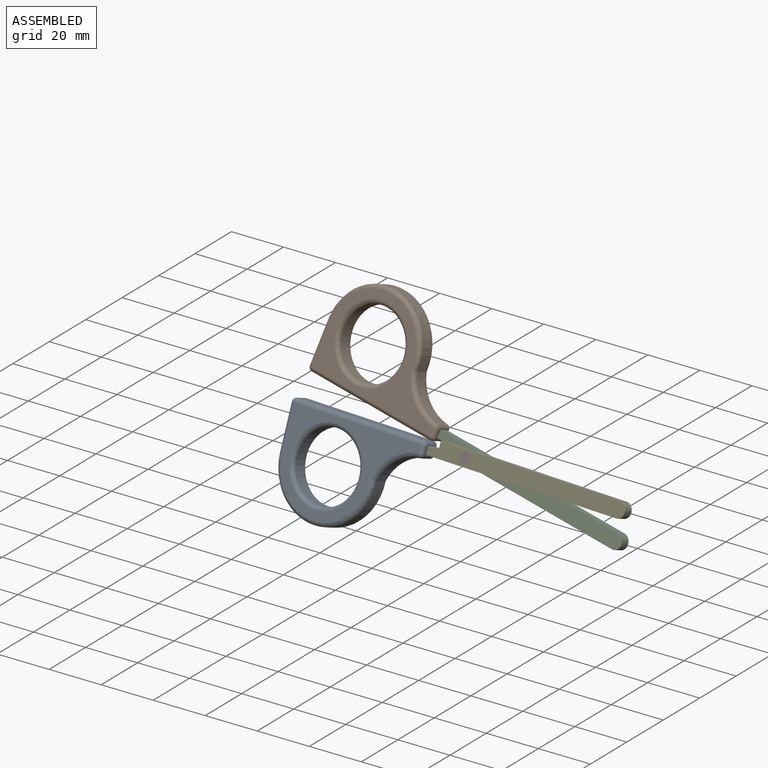
[diagram: assembled view]
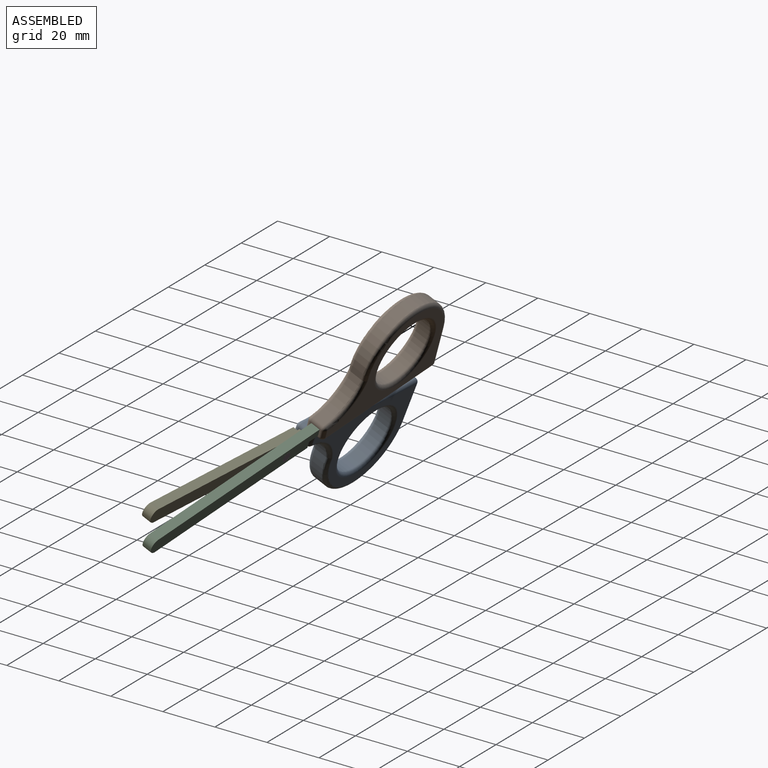
[diagram: assembled view, second angle]
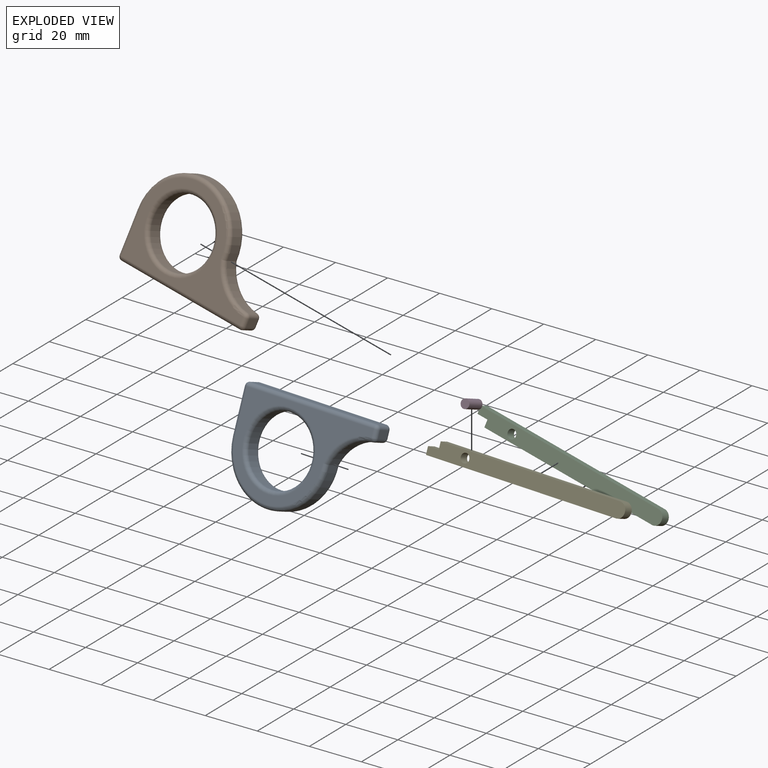
[diagram: exploded view]
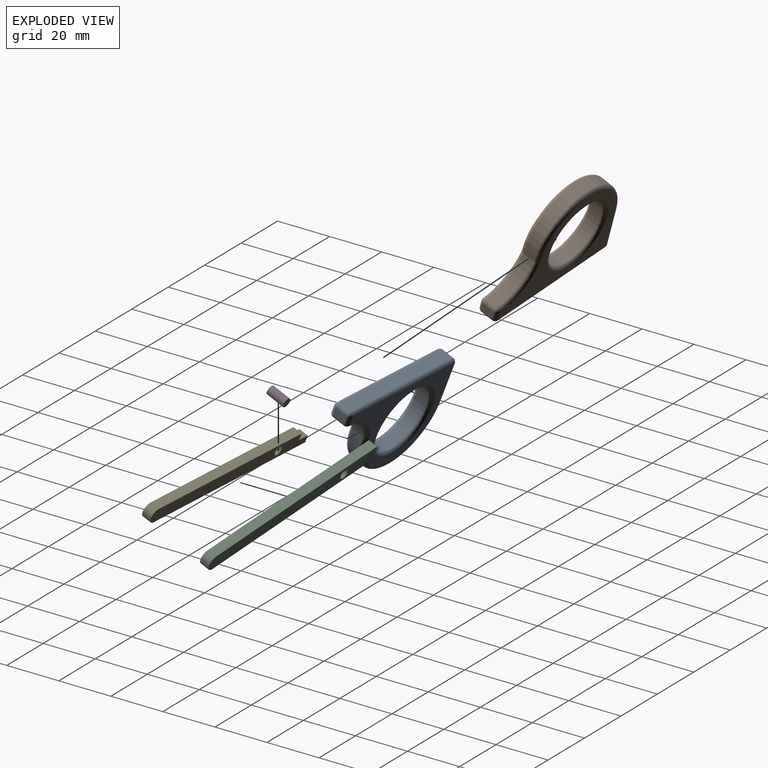
[diagram: exploded view, second angle]
ASSEMBLY  parts=5 mates=4
PART A: 29 faces, bbox 55.5x7.6x38.4 mm
  f0: cylinder r=16.51mm len=14.47mm, axis (0,1,0), area 89mm2, adj f1,f9,f17,f23
  f1: cylinder r=19.05mm len=38.1mm, axis (0,1,0), area 276.3mm2, adj f0,f2,f10,f25
  f2: plane 16.26x4.57mm, normal (-1,0,0), area 74.3mm2, adj f1,f13,f21,f26
  f3: plane 50.93x4.57mm, normal (0,0,-1), area 232.8mm2, adj f14,f15,f21,f22
  f4: cylinder r=12.7mm len=25.4mm, axis (0,1,0), area 364.8mm2, adj f27,f28
  f5: plane 4.57x2.87mm, normal (1,0,0), area 13.1mm2, adj f8,f15,f16,f17
  f6: plane 50.93x33.78mm, normal (0,-1,0), area 519.1mm2, adj f8,f9,f10,f13,f14,f28
  f7: plane 50.93x33.78mm, normal (0,1,0), area 519.1mm2, adj f16,f22,f23,f25,f26,f27
  f8: cylinder r=1.52mm len=2.87mm, axis (0,0,-1), area 6.9mm2, adj f5,f6,f11,f12
  f9: torus R=18.03mm, axis (0,-1,0), area 48.4mm2, adj f0,f6,f10,f12
  f10: torus R=17.53mm, axis (0,-1,0), area 140.7mm2, adj f1,f6,f9,f13
  f11: sphere r=1.52mm, area 3.6mm2, adj f8,f14,f15
  f12: sphere r=1.52mm, area 3.5mm2, adj f8,f9,f17
  f13: cylinder r=1.52mm len=16.26mm, axis (0,0,1), area 38.9mm2, adj f2,f6,f10,f18
  f14: cylinder r=1.52mm len=50.93mm, axis (-1,0,0), area 121.9mm2, adj f3,f6,f11,f18
  f15: cylinder r=1.52mm len=4.57mm, axis (0,1,0), area 10.9mm2, adj f3,f5,f11,f19
  f16: cylinder r=1.52mm len=2.87mm, axis (0,0,1), area 6.9mm2, adj f5,f7,f19,f20
  f17: cylinder r=1.52mm len=4.57mm, axis (0,1,0), area 10.4mm2, adj f0,f5,f12,f20
  f18: sphere r=1.52mm, area 3.6mm2, adj f13,f14,f21
  f19: sphere r=1.52mm, area 3.6mm2, adj f15,f16,f22
  f20: sphere r=1.52mm, area 3.5mm2, adj f16,f17,f23
  f21: cylinder r=1.52mm len=4.57mm, axis (0,-1,0), area 10.9mm2, adj f2,f3,f18,f24
  f22: cylinder r=1.52mm len=50.93mm, axis (1,0,0), area 121.9mm2, adj f3,f7,f19,f24
  f23: torus R=18.03mm, axis (0,-1,0), area 48.4mm2, adj f0,f7,f20,f25
  f24: sphere r=1.52mm, area 3.6mm2, adj f21,f22,f26
  f25: torus R=17.53mm, axis (0,-1,0), area 140.7mm2, adj f1,f7,f23,f26
  f26: cylinder r=1.52mm len=16.26mm, axis (0,0,-1), area 38.9mm2, adj f2,f7,f24,f25
  f27: torus R=14.22mm, axis (0,-1,0), area 199.4mm2, adj f4,f7
  f28: torus R=14.22mm, axis (0,-1,0), area 199.4mm2, adj f4,f6
PART B: same geometry as A
PART C: 9 faces, bbox 79.3x3.6x5.6 mm
  f0: plane 71.88x3.56mm, normal (0,0,-1), area 255.6mm2, adj f1,f6,f7,f8
  f1: cylinder r=2.79mm len=5.59mm, axis (0,1,0), area 32.2mm2, adj f0,f2,f7,f8
  f2: plane 76.47x3.56mm, normal (0,0,1), area 271.9mm2, adj f1,f3,f7,f8
  f3: plane 3.56x2.86mm, normal (-1,0,0), area 10.2mm2, adj f2,f4,f7,f8
  f4: plane 4.32x3.56mm, normal (0,0,-1), area 15.4mm2, adj f3,f6,f7,f8
  f5: cylinder r=1.71mm len=3.56mm, axis (0,1,0), area 38.3mm2, adj f7,f8
  f6: plane 3.56x2.72mm, normal (-1,0,0), area 9.7mm2, adj f0,f4,f7,f8
  f7: plane 79.27x5.59mm, normal (0,-1,0), area 417.6mm2, adj f0,f1,f2,f3,f4,f5,f6
  f8: plane 79.27x5.59mm, normal (0,1,0), area 417.6mm2, adj f0,f1,f2,f3,f4,f5,f6
PART D: 3 faces, bbox 3.4x7.1x3.4 mm
  f0: cylinder r=1.7mm len=7.11mm, axis (0,1,0), area 76mm2, adj f1,f2
  f1: plane 3.4x3.4mm, normal (0,-1,0), area 9.1mm2, adj f0
  f2: plane 3.4x3.4mm, normal (0,1,0), area 9.1mm2, adj f0
PART E: same geometry as C
PLACE A rot(axis=(1,-0.03,0),158.5deg) t=(-59.67,-14.24,41.96)mm
PLACE B rot(axis=(-0.87,0.43,-0.22),24.2deg) t=(-63.95,-20.33,-4.53)mm
PLACE C rot(axis=(-0.87,0.43,-0.22),24.2deg) t=(-60.75,-22.95,-5.12)mm
PLACE D rot(axis=(-0.99,0.03,-0.16),21.8deg) t=(-38.02,-23.36,-2.57)mm
PLACE E rot(axis=(1,-0.03,0),158.5deg) t=(-55.98,-12.27,42)mm
MATE fastened E.f5 <-> D.f0  axis (-0.06,-0.93,0.37) through (-57.49,-21.01,19.66)mm
MATE fastened B.f5 <-> C.f3  axis (0.98,-0.12,-0.16) through (-71.43,-13.68,21.47)mm
MATE fastened A.f5 <-> E.f3  axis (1,-0.06,0) through (-72.25,-19.01,17.56)mm
MATE revolute C.f5 <-> E.f5  axis (0.06,0.93,-0.37) through (-57.28,-17.71,18.35)mm
